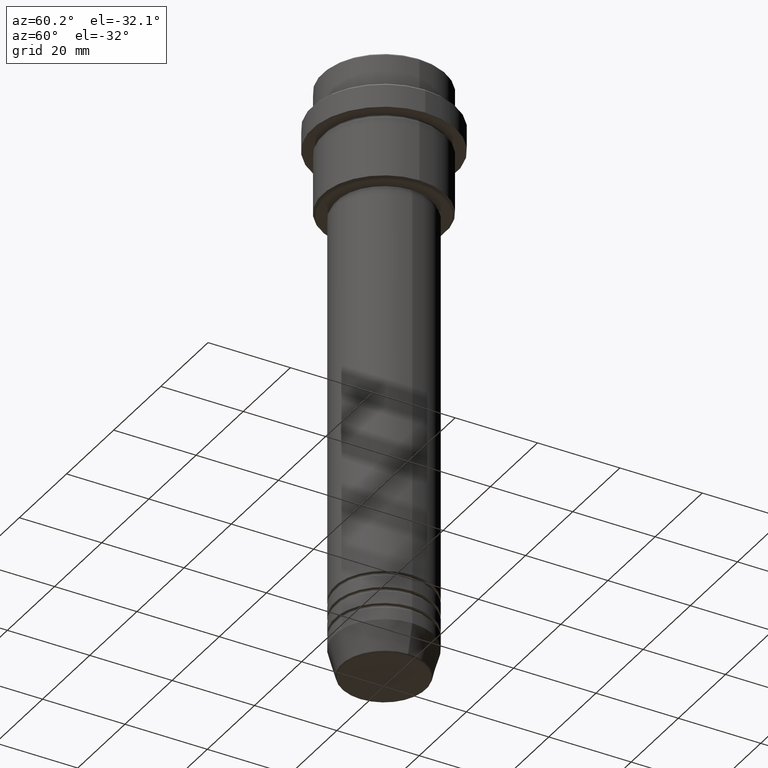
[diagram: clean part render]
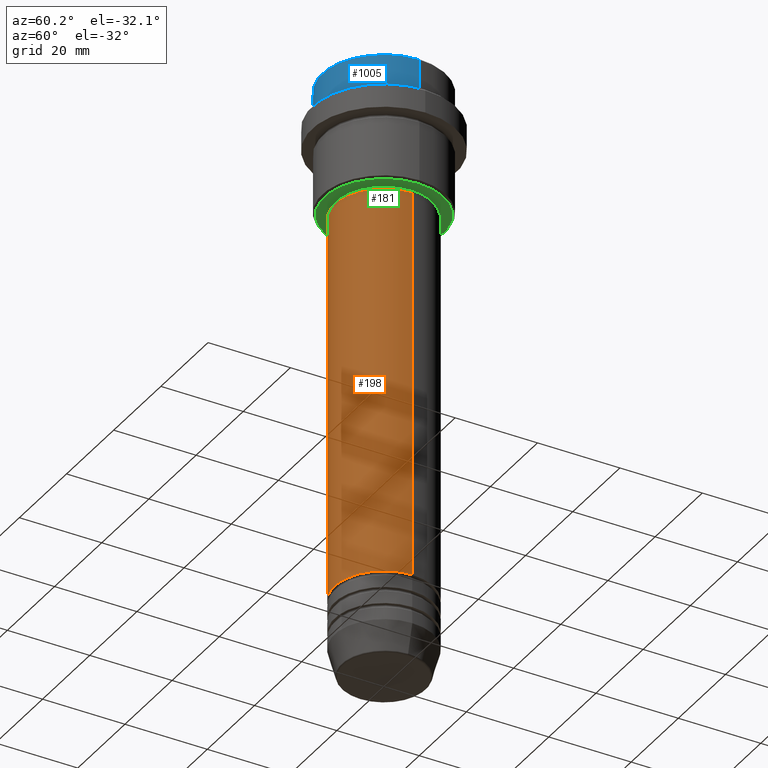
[diagram: same view with three faces highlighted in distinct colors, each labeled with its STEP entity id]
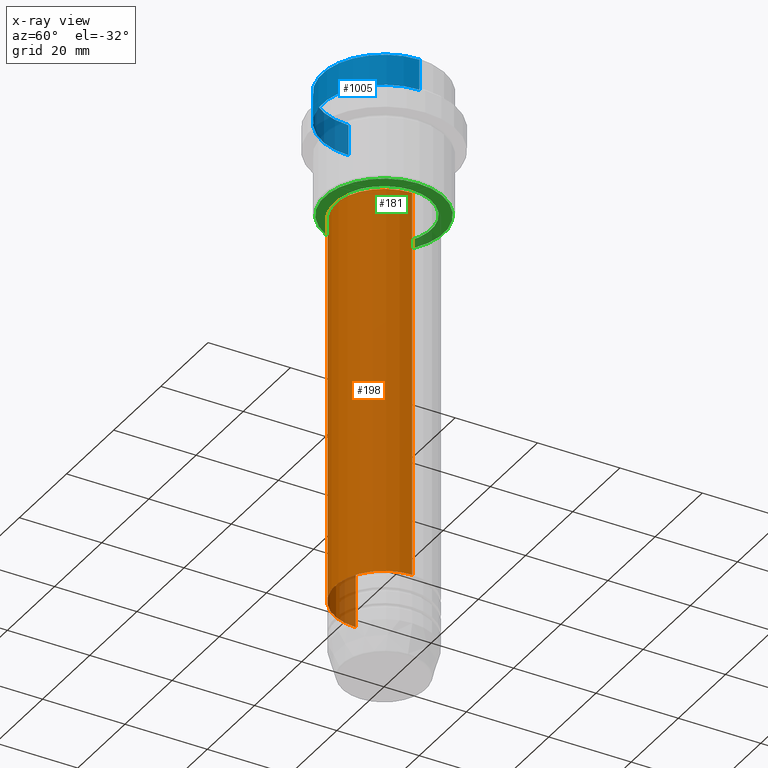
[diagram: x-ray of the same camera — body ghosted, the three highlighted faces saturated]
A machine part, auxiliary view with three faces highlighted in distinct colors.
The next image is the same camera in x-ray (body ghosted, the three faces saturated) — at least one of them is partly hidden behind the body in this view.
Their STEP definitions:

[orange] entity #198 — the highlighted cylindrical surface (partial cylindrical patch) has radius 12 mm, axis along (-0, -0, 1).
#12 = CARTESIAN_POINT ( 'NONE',  ( -12.00000000000000000, 1.469576158976823947E-15, -126.9999999999998579 ) ) ;
#25 = DIRECTION ( 'NONE',  ( -0.000000000000000000, -0.000000000000000000, 1.000000000000000000 ) ) ;
#41 = CARTESIAN_POINT ( 'NONE',  ( -12.00000000000000000, 1.469576158976823947E-15, 0.000000000000000000 ) ) ;
#48 = DIRECTION ( 'NONE',  ( 1.000000000000000000, 0.000000000000000000, 0.000000000000000000 ) ) ;
#123 = DIRECTION ( 'NONE',  ( 1.000000000000000000, 0.000000000000000000, 0.000000000000000000 ) ) ;
#168 = VERTEX_POINT ( 'NONE', #940 ) ;
#198 = ADVANCED_FACE ( 'NONE', ( #514 ), #949, .T. ) ;
#199 = ORIENTED_EDGE ( 'NONE', *, *, #807, .T. ) ;
#201 = CIRCLE ( 'NONE', #726, 12.00000000000000000 ) ;
#219 = ORIENTED_EDGE ( 'NONE', *, *, #961, .T. ) ;
#238 = EDGE_CURVE ( 'NONE', #974, #546, #1181, .T. ) ;
#292 = CARTESIAN_POINT ( 'NONE',  ( 11.99999999999999822, 0.000000000000000000, -31.99999999999999289 ) ) ;
#371 = ORIENTED_EDGE ( 'NONE', *, *, #1104, .F. ) ;
#417 = DIRECTION ( 'NONE',  ( -0.000000000000000000, -0.000000000000000000, 1.000000000000000000 ) ) ;
#454 = CARTESIAN_POINT ( 'NONE',  ( -11.99999999999999822, 1.469576158976823750E-15, -31.99999999999999289 ) ) ;
#473 = EDGE_LOOP ( 'NONE', ( #371, #219, #199, #1351 ) ) ;
#514 = FACE_OUTER_BOUND ( 'NONE', #473, .T. ) ;
#519 = VECTOR ( 'NONE', #1138, 1000.000000000000000 ) ;
#546 = VERTEX_POINT ( 'NONE', #292 ) ;
#726 = AXIS2_PLACEMENT_3D ( 'NONE', #772, #25, #123 ) ;
#761 = DIRECTION ( 'NONE',  ( 1.000000000000000000, 0.000000000000000000, 0.000000000000000000 ) ) ;
#772 = CARTESIAN_POINT ( 'NONE',  ( 0.000000000000000000, 0.000000000000000000, -126.9999999999998579 ) ) ;
#807 = EDGE_CURVE ( 'NONE', #168, #546, #1287, .T. ) ;
#940 = CARTESIAN_POINT ( 'NONE',  ( 12.00000000000000000, 0.000000000000000000, -126.9999999999998579 ) ) ;
#949 = CYLINDRICAL_SURFACE ( 'NONE', #988, 12.00000000000000000 ) ;
#961 = EDGE_CURVE ( 'NONE', #1157, #168, #201, .T. ) ;
#974 = VERTEX_POINT ( 'NONE', #454 ) ;
#988 = AXIS2_PLACEMENT_3D ( 'NONE', #1028, #1051, #48 ) ;
#1018 = LINE ( 'NONE', #41, #519 ) ;
#1028 = CARTESIAN_POINT ( 'NONE',  ( 0.000000000000000000, 0.000000000000000000, 0.000000000000000000 ) ) ;
#1051 = DIRECTION ( 'NONE',  ( -0.000000000000000000, -0.000000000000000000, 1.000000000000000000 ) ) ;
#1068 = VECTOR ( 'NONE', #417, 1000.000000000000000 ) ;
#1080 = CARTESIAN_POINT ( 'NONE',  ( 0.000000000000000000, 0.000000000000000000, -31.99999999999999289 ) ) ;
#1095 = DIRECTION ( 'NONE',  ( -0.000000000000000000, -0.000000000000000000, 1.000000000000000000 ) ) ;
#1104 = EDGE_CURVE ( 'NONE', #1157, #974, #1018, .T. ) ;
#1135 = AXIS2_PLACEMENT_3D ( 'NONE', #1080, #1095, #761 ) ;
#1138 = DIRECTION ( 'NONE',  ( -0.000000000000000000, -0.000000000000000000, 1.000000000000000000 ) ) ;
#1157 = VERTEX_POINT ( 'NONE', #12 ) ;
#1181 = CIRCLE ( 'NONE', #1135, 11.99999999999999822 ) ;
#1287 = LINE ( 'NONE', #1401, #1068 ) ;
#1351 = ORIENTED_EDGE ( 'NONE', *, *, #238, .F. ) ;
#1401 = CARTESIAN_POINT ( 'NONE',  ( 12.00000000000000000, 0.000000000000000000, 0.000000000000000000 ) ) ;

[blue] entity #1005 — the highlighted cylindrical surface (partial cylindrical patch) has radius 15 mm, axis along (-0, -0, 1).
#34 = CARTESIAN_POINT ( 'NONE',  ( 0.000000000000000000, 0.000000000000000000, -7.999999999999998224 ) ) ;
#68 = DIRECTION ( 'NONE',  ( 0.000000000000000000, 0.000000000000000000, -1.000000000000000000 ) ) ;
#148 = DIRECTION ( 'NONE',  ( -0.000000000000000000, -0.000000000000000000, 1.000000000000000000 ) ) ;
#221 = CIRCLE ( 'NONE', #1252, 15.00000000000000000 ) ;
#232 = ORIENTED_EDGE ( 'NONE', *, *, #591, .T. ) ;
#256 = DIRECTION ( 'NONE',  ( -0.000000000000000000, -0.000000000000000000, 1.000000000000000000 ) ) ;
#265 = VECTOR ( 'NONE', #148, 1000.000000000000000 ) ;
#277 = DIRECTION ( 'NONE',  ( -0.000000000000000000, -0.000000000000000000, 1.000000000000000000 ) ) ;
#280 = VERTEX_POINT ( 'NONE', #1416 ) ;
#310 = AXIS2_PLACEMENT_3D ( 'NONE', #1349, #277, #1030 ) ;
#373 = CARTESIAN_POINT ( 'NONE',  ( 0.000000000000000000, 0.000000000000000000, -0.4999999999999970024 ) ) ;
#377 = AXIS2_PLACEMENT_3D ( 'NONE', #34, #689, #578 ) ;
#416 = VERTEX_POINT ( 'NONE', #573 ) ;
#429 = EDGE_CURVE ( 'NONE', #706, #784, #468, .T. ) ;
#468 = CIRCLE ( 'NONE', #377, 15.00000000000000000 ) ;
#490 = EDGE_CURVE ( 'NONE', #784, #280, #673, .T. ) ;
#527 = CARTESIAN_POINT ( 'NONE',  ( 15.00000000000000000, 0.000000000000000000, -7.999999999999998224 ) ) ;
#573 = CARTESIAN_POINT ( 'NONE',  ( -15.00000000000000000, 1.836970198721029589E-15, -0.4999999999999970024 ) ) ;
#578 = DIRECTION ( 'NONE',  ( 1.000000000000000000, 0.000000000000000000, 0.000000000000000000 ) ) ;
#591 = EDGE_CURVE ( 'NONE', #280, #416, #221, .T. ) ;
#599 = FACE_OUTER_BOUND ( 'NONE', #649, .T. ) ;
#649 = EDGE_LOOP ( 'NONE', ( #727, #1071, #1319, #232 ) ) ;
#673 = LINE ( 'NONE', #1131, #265 ) ;
#689 = DIRECTION ( 'NONE',  ( -0.000000000000000000, -0.000000000000000000, 1.000000000000000000 ) ) ;
#706 = VERTEX_POINT ( 'NONE', #861 ) ;
#727 = ORIENTED_EDGE ( 'NONE', *, *, #982, .F. ) ;
#784 = VERTEX_POINT ( 'NONE', #527 ) ;
#806 = CARTESIAN_POINT ( 'NONE',  ( -15.00000000000000000, 1.836970198721029589E-15, 0.000000000000000000 ) ) ;
#820 = CYLINDRICAL_SURFACE ( 'NONE', #310, 15.00000000000000000 ) ;
#861 = CARTESIAN_POINT ( 'NONE',  ( -15.00000000000000000, 1.836970198721029589E-15, -7.999999999999998224 ) ) ;
#931 = DIRECTION ( 'NONE',  ( 1.000000000000000000, 0.000000000000000000, 0.000000000000000000 ) ) ;
#982 = EDGE_CURVE ( 'NONE', #706, #416, #1261, .T. ) ;
#990 = VECTOR ( 'NONE', #256, 1000.000000000000000 ) ;
#1005 = ADVANCED_FACE ( 'NONE', ( #599 ), #820, .T. ) ;
#1030 = DIRECTION ( 'NONE',  ( 1.000000000000000000, 0.000000000000000000, 0.000000000000000000 ) ) ;
#1071 = ORIENTED_EDGE ( 'NONE', *, *, #429, .T. ) ;
#1131 = CARTESIAN_POINT ( 'NONE',  ( 15.00000000000000000, 0.000000000000000000, 0.000000000000000000 ) ) ;
#1252 = AXIS2_PLACEMENT_3D ( 'NONE', #373, #68, #931 ) ;
#1261 = LINE ( 'NONE', #806, #990 ) ;
#1319 = ORIENTED_EDGE ( 'NONE', *, *, #490, .T. ) ;
#1349 = CARTESIAN_POINT ( 'NONE',  ( 0.000000000000000000, 0.000000000000000000, 0.000000000000000000 ) ) ;
#1416 = CARTESIAN_POINT ( 'NONE',  ( 15.00000000000000000, 0.000000000000000000, -0.4999999999999970024 ) ) ;

[green] entity #181 — the highlighted planar face has unit normal (0, 0, -1).
#21 = DIRECTION ( 'NONE',  ( -1.000000000000000000, 0.000000000000000000, 0.000000000000000000 ) ) ;
#54 = CARTESIAN_POINT ( 'NONE',  ( 0.000000000000000000, 0.000000000000000000, -30.99999999999999289 ) ) ;
#63 = DIRECTION ( 'NONE',  ( 0.000000000000000000, 0.000000000000000000, -1.000000000000000000 ) ) ;
#75 = DIRECTION ( 'NONE',  ( -0.000000000000000000, -0.000000000000000000, 1.000000000000000000 ) ) ;
#101 = AXIS2_PLACEMENT_3D ( 'NONE', #1381, #295, #1058 ) ;
#109 = EDGE_LOOP ( 'NONE', ( #365, #1137 ) ) ;
#151 = CIRCLE ( 'NONE', #1231, 11.49999999999999467 ) ;
#158 = FACE_OUTER_BOUND ( 'NONE', #109, .T. ) ;
#181 = ADVANCED_FACE ( 'NONE', ( #158, #926 ), #1375, .T. ) ;
#261 = VERTEX_POINT ( 'NONE', #426 ) ;
#295 = DIRECTION ( 'NONE',  ( 0.000000000000000000, 0.000000000000000000, -1.000000000000000000 ) ) ;
#326 = EDGE_LOOP ( 'NONE', ( #531, #792 ) ) ;
#365 = ORIENTED_EDGE ( 'NONE', *, *, #1357, .T. ) ;
#426 = CARTESIAN_POINT ( 'NONE',  ( -14.49999999999999822, 1.806354028742345802E-15, -30.99999999999999289 ) ) ;
#455 = CARTESIAN_POINT ( 'NONE',  ( 0.000000000000000000, 0.000000000000000000, -30.99999999999999289 ) ) ;
#531 = ORIENTED_EDGE ( 'NONE', *, *, #535, .T. ) ;
#535 = EDGE_CURVE ( 'NONE', #1128, #1098, #151, .T. ) ;
#569 = AXIS2_PLACEMENT_3D ( 'NONE', #54, #63, #1398 ) ;
#616 = DIRECTION ( 'NONE',  ( 1.000000000000000000, 0.000000000000000000, 0.000000000000000000 ) ) ;
#656 = AXIS2_PLACEMENT_3D ( 'NONE', #1077, #75, #1389 ) ;
#662 = CIRCLE ( 'NONE', #569, 14.49999999999999822 ) ;
#713 = EDGE_CURVE ( 'NONE', #1098, #1128, #1206, .T. ) ;
#792 = ORIENTED_EDGE ( 'NONE', *, *, #713, .T. ) ;
#814 = DIRECTION ( 'NONE',  ( -0.000000000000000000, -0.000000000000000000, 1.000000000000000000 ) ) ;
#895 = CARTESIAN_POINT ( 'NONE',  ( 14.49999999999999822, 0.000000000000000000, -30.99999999999999289 ) ) ;
#926 = FACE_BOUND ( 'NONE', #326, .T. ) ;
#937 = CARTESIAN_POINT ( 'NONE',  ( -11.49999999999999467, 1.408343819019455781E-15, -30.99999999999999289 ) ) ;
#1045 = AXIS2_PLACEMENT_3D ( 'NONE', #455, #1213, #21 ) ;
#1058 = DIRECTION ( 'NONE',  ( -1.000000000000000000, 0.000000000000000000, -0.000000000000000000 ) ) ;
#1077 = CARTESIAN_POINT ( 'NONE',  ( 0.000000000000000000, 0.000000000000000000, -30.99999999999999289 ) ) ;
#1098 = VERTEX_POINT ( 'NONE', #937 ) ;
#1128 = VERTEX_POINT ( 'NONE', #1271 ) ;
#1137 = ORIENTED_EDGE ( 'NONE', *, *, #1223, .T. ) ;
#1140 = VERTEX_POINT ( 'NONE', #895 ) ;
#1206 = CIRCLE ( 'NONE', #656, 11.49999999999999467 ) ;
#1213 = DIRECTION ( 'NONE',  ( 0.000000000000000000, 0.000000000000000000, -1.000000000000000000 ) ) ;
#1223 = EDGE_CURVE ( 'NONE', #261, #1140, #1411, .T. ) ;
#1231 = AXIS2_PLACEMENT_3D ( 'NONE', #1379, #814, #616 ) ;
#1271 = CARTESIAN_POINT ( 'NONE',  ( 11.49999999999999467, 0.000000000000000000, -30.99999999999999289 ) ) ;
#1357 = EDGE_CURVE ( 'NONE', #1140, #261, #662, .T. ) ;
#1375 = PLANE ( 'NONE',  #101 ) ;
#1379 = CARTESIAN_POINT ( 'NONE',  ( 0.000000000000000000, 0.000000000000000000, -30.99999999999999289 ) ) ;
#1381 = CARTESIAN_POINT ( 'NONE',  ( 0.000000000000000000, 15.00000000000000000, -30.99999999999999289 ) ) ;
#1389 = DIRECTION ( 'NONE',  ( 1.000000000000000000, 0.000000000000000000, 0.000000000000000000 ) ) ;
#1398 = DIRECTION ( 'NONE',  ( -1.000000000000000000, 0.000000000000000000, 0.000000000000000000 ) ) ;
#1411 = CIRCLE ( 'NONE', #1045, 14.49999999999999822 ) ;